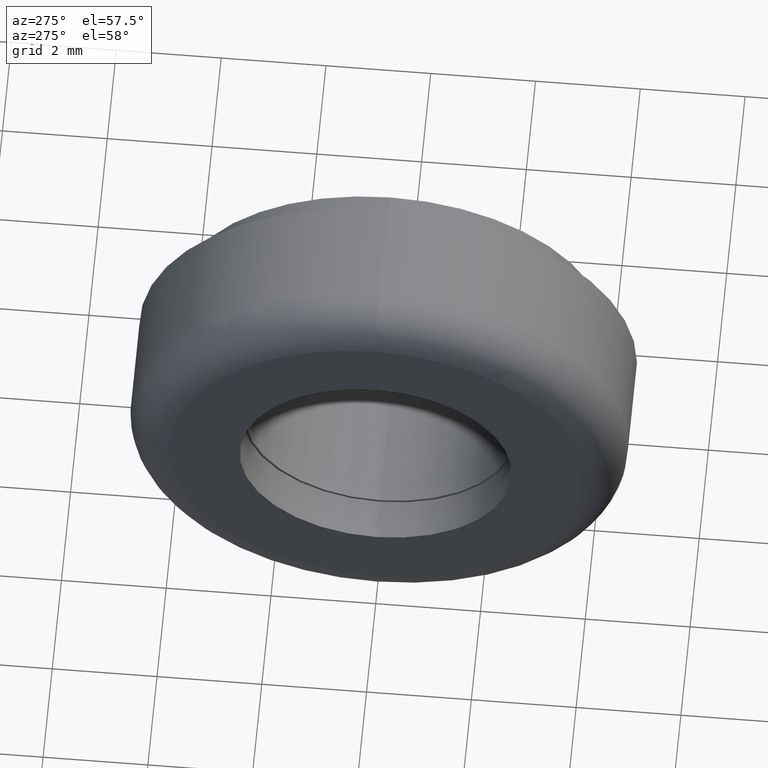
[diagram: clean part render]
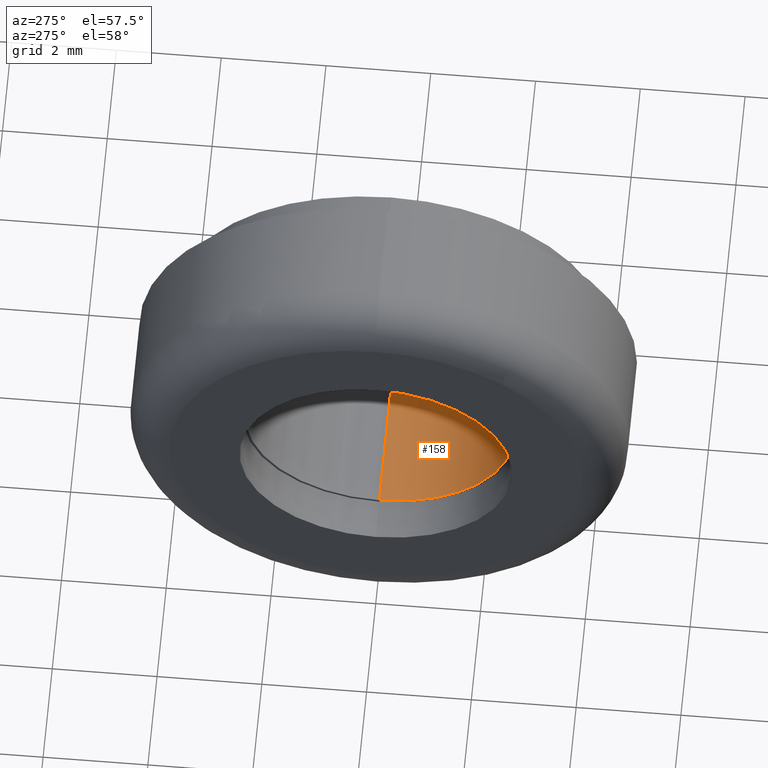
[diagram: same view with one face highlighted and labeled with its STEP entity id]
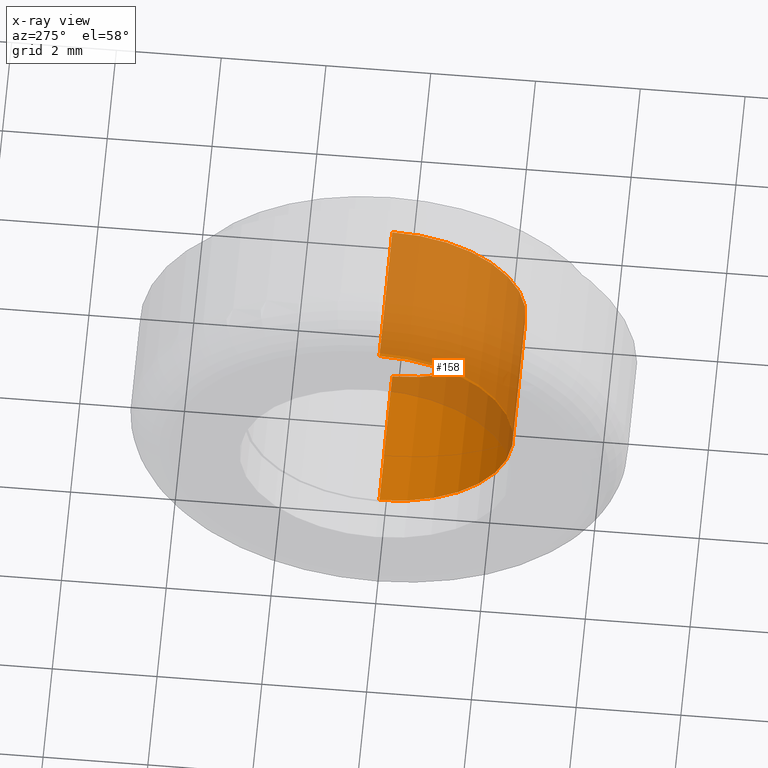
[diagram: x-ray of the same camera — body ghosted, the highlighted face saturated]
A machine part, auxiliary view. The second image highlights one B-rep face of the part: STEP entity #158.
The next image is the same camera in x-ray: the body ghosted, the highlighted face saturated — about 67% of this face is hidden behind the body in this view.
In plain terms, the highlighted cylindrical surface (partial cylindrical patch) has radius 2.55 mm, axis along (-1, -0, -0).
Its self-contained STEP definition (entity closure, byte-faithful):
#16 = CYLINDRICAL_SURFACE ( 'NONE', #634, 2.549999999999999800 ) ;
#26 = CARTESIAN_POINT ( 'NONE',  ( 2.799999999999997200, 0.0000000000000000000, 0.0000000000000000000 ) ) ;
#33 = ORIENTED_EDGE ( 'NONE', *, *, #525, .T. ) ;
#56 = CARTESIAN_POINT ( 'NONE',  ( -88.98999999999999500, 0.0000000000000000000, 0.0000000000000000000 ) ) ;
#77 = VECTOR ( 'NONE', #217, 1000.000000000000000 ) ;
#86 = DIRECTION ( 'NONE',  ( 0.0000000000000000000, 0.0000000000000000000, 1.000000000000000000 ) ) ;
#109 = AXIS2_PLACEMENT_3D ( 'NONE', #26, #416, #86 ) ;
#141 = DIRECTION ( 'NONE',  ( -1.000000000000000000, -0.0000000000000000000, -0.0000000000000000000 ) ) ;
#143 = CARTESIAN_POINT ( 'NONE',  ( -88.98999999999999500, 3.122849337825750400E-016, -2.549999999999999800 ) ) ;
#151 = ORIENTED_EDGE ( 'NONE', *, *, #273, .T. ) ;
#158 = ADVANCED_FACE ( 'NONE', ( #462 ), #16, .F. ) ;
#160 = DIRECTION ( 'NONE',  ( -1.000000000000000000, -0.0000000000000000000, -0.0000000000000000000 ) ) ;
#175 = AXIS2_PLACEMENT_3D ( 'NONE', #654, #712, #371 ) ;
#211 = VERTEX_POINT ( 'NONE', #724 ) ;
#217 = DIRECTION ( 'NONE',  ( -1.000000000000000000, -0.0000000000000000000, -0.0000000000000000000 ) ) ;
#236 = DIRECTION ( 'NONE',  ( 0.0000000000000000000, 0.0000000000000000000, 1.000000000000000000 ) ) ;
#243 = VERTEX_POINT ( 'NONE', #649 ) ;
#265 = CARTESIAN_POINT ( 'NONE',  ( 2.799999999999997200, 3.122849337825750400E-016, -2.549999999999999800 ) ) ;
#273 = EDGE_CURVE ( 'NONE', #672, #211, #575, .T. ) ;
#353 = EDGE_LOOP ( 'NONE', ( #408, #33, #151, #723 ) ) ;
#371 = DIRECTION ( 'NONE',  ( 0.0000000000000000000, 0.0000000000000000000, 1.000000000000000000 ) ) ;
#408 = ORIENTED_EDGE ( 'NONE', *, *, #504, .F. ) ;
#414 = CARTESIAN_POINT ( 'NONE',  ( 0.0000000000000000000, 3.122849337825750400E-016, -2.549999999999999800 ) ) ;
#416 = DIRECTION ( 'NONE',  ( -1.000000000000000000, -0.0000000000000000000, -0.0000000000000000000 ) ) ;
#441 = CIRCLE ( 'NONE', #109, 2.549999999999999800 ) ;
#462 = FACE_OUTER_BOUND ( 'NONE', #353, .T. ) ;
#504 = EDGE_CURVE ( 'NONE', #620, #243, #441, .T. ) ;
#525 = EDGE_CURVE ( 'NONE', #620, #672, #591, .T. ) ;
#535 = LINE ( 'NONE', #597, #77 ) ;
#566 = VECTOR ( 'NONE', #141, 1000.000000000000000 ) ;
#575 = CIRCLE ( 'NONE', #175, 2.549999999999999800 ) ;
#591 = LINE ( 'NONE', #143, #566 ) ;
#597 = CARTESIAN_POINT ( 'NONE',  ( -88.98999999999999500, 0.0000000000000000000, 2.549999999999999800 ) ) ;
#620 = VERTEX_POINT ( 'NONE', #265 ) ;
#627 = EDGE_CURVE ( 'NONE', #243, #211, #535, .T. ) ;
#634 = AXIS2_PLACEMENT_3D ( 'NONE', #56, #160, #236 ) ;
#649 = CARTESIAN_POINT ( 'NONE',  ( 2.799999999999997200, 0.0000000000000000000, 2.549999999999999800 ) ) ;
#654 = CARTESIAN_POINT ( 'NONE',  ( 0.0000000000000000000, 0.0000000000000000000, 0.0000000000000000000 ) ) ;
#672 = VERTEX_POINT ( 'NONE', #414 ) ;
#712 = DIRECTION ( 'NONE',  ( -1.000000000000000000, -0.0000000000000000000, -0.0000000000000000000 ) ) ;
#723 = ORIENTED_EDGE ( 'NONE', *, *, #627, .F. ) ;
#724 = CARTESIAN_POINT ( 'NONE',  ( 0.0000000000000000000, 0.0000000000000000000, 2.549999999999999800 ) ) ;